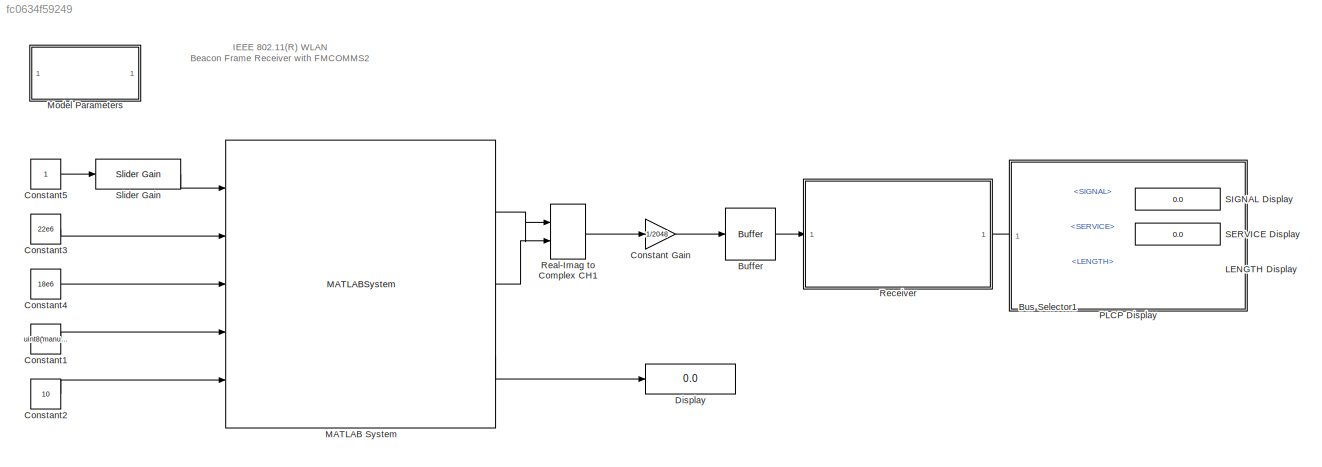
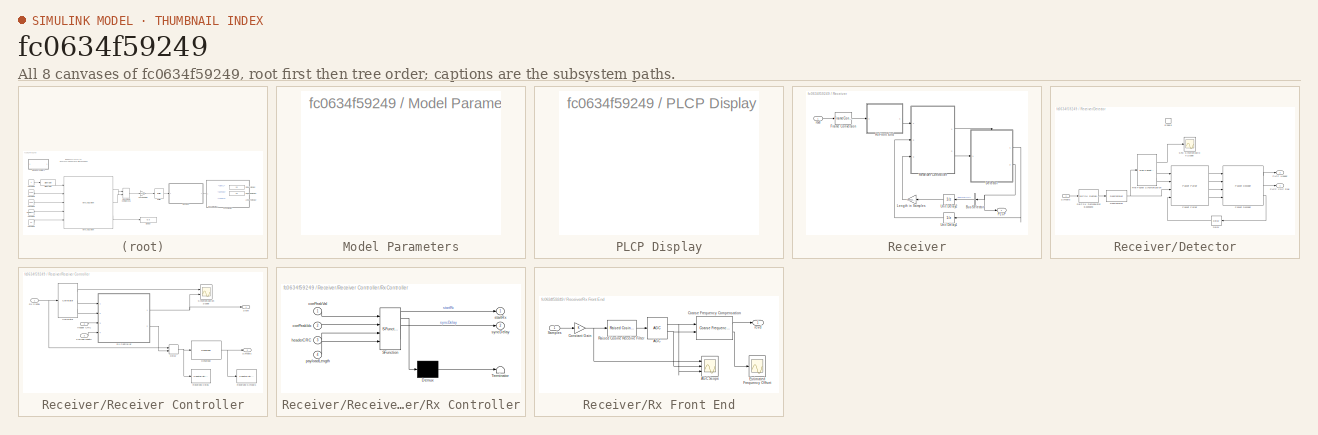
[diagram: thumbnail index - all 8 canvases of the model, root first then tree order]
MODEL slx_fc0634f59249
KIND model
CONFIG AbsTol = auto
CONFIG EnableMultiTasking = off
CONFIG FixedStep = auto
CONFIG InitFcn = load('commwlan80211BusTypes')\nwlan80211BeaconRxModelParams('init')
CONFIG MaxStep = auto
CONFIG MinStep = auto
CONFIG PostLoadFcn = wlan80211BeaconRxModelParams('init')\nwlan80211BeaconRxModelParams('scope')
CONFIG PreLoadFcn = load('commwlan80211BusTypes')\nopenMPDUGUI = true;\nsample = 860*2816;\n
CONFIG RelTol = 1e-3
CONFIG SampleTimeConstraint = Unconstrained
CONFIG Solver = FixedStepDiscrete
CONFIG SolverName = FixedStepDiscrete
CONFIG StartTime = 0.0
CONFIG StopTime = Inf
WORKSPACE source: external: MAT-File  (data not in archive)
BLOCK [Buffer] Buffer
  N = 2816
BLOCK [BusSelector] Bus Selector1
  OutputAsBus = off
  OutputSignals = SIGNAL,SERVICE,LENGTH
  Ports = [1, 3]
BLOCK [Gain] Constant Gain
  Gain = 1/2048
  OutDataTypeStr = Inherit: Inherit via internal rule
BLOCK [Constant] Constant1
  SampleTime = 1
  Value = uint8('manual')
BLOCK [Constant] Constant2
  SampleTime = 1
  Value = 10
BLOCK [Constant] Constant3
  SampleTime = 1
  Value = 22e6
BLOCK [Constant] Constant4
  SampleTime = 1
  Value = 18e6
BLOCK [Constant] Constant5
  SampleTime = 1
BLOCK [Display] Display
  Decimation = 1
  Ports = [1]
BLOCK [Display] LENGTH Display
  Decimation = 1
  Ports = [1]
BLOCK [MATLABSystem] MATLAB System
  MaskDisplay = disp('ad9361');\nport_label('input',1,'RX_LO_FREQ');\nport_label('input',2,'RX_SAMPLING_FREQ');\nport_label('input',3,'RX_RF_BANDWIDTH');\nport_label('input',4,'RX1_GAIN_MODE');\nport_label('input',5,'RX1_GAIN');\nport_label('output',1,'DATA_OUT1');\nport_label('output',2,'DATA_OUT2');\nport_label('output',3,'RX1_RSSI');
  MaskType = iio_sys_obj
  Ports = [5, 3]
  SimulateUsing = Interpreted execution
  System = iio_sys_obj
  dev_name = ad9361
  in_ch_no = 0
  in_ch_size = sample
  ip_address = 10.66.99.142
  out_ch_no = 2
  out_ch_size = sample
BLOCK [SubSystem] Model Parameters
  Ports = []
  RequestExecContextInheritance = off
  Variant = off
BLOCK [SubSystem] PLCP Display
  Ports = []
  RequestExecContextInheritance = off
  Variant = off
BLOCK [RealImagToComplex] Real-Imag to Complex CH1
  Ports = [2, 1]
  SampleTime = sample/(25e6)
BLOCK [SubSystem] Receiver
  Ports = [1, 1]
  RequestExecContextInheritance = off
  Variant = off
BLOCK [BusSelector] Receiver/Bus Selector
  OutputAsBus = off
  OutputSignals = LENGTH
  Ports = [1, 1]
BLOCK [SubSystem] Receiver/Detector
  CloseFcn = clear BeaconFrameBodyType rcvd
  Ports = [1, 2, 1]
  RequestExecContextInheritance = off
  Variant = off
BLOCK [Reference] Receiver/Detector/DBPSK Demodulator Baseband  REF=commdigbbndpm3/DBPSK
Demodulator
Baseband
  Ports = [1, 1]
  SourceBlock = commdigbbndpm3/DBPSK\nDemodulator\nBaseband
  SourceProductBaseCode = CM
  SourceProductName = Communications System Toolbox
  SourceType = DBPSK Demodulator Baseband
BLOCK [Delay] Receiver/Detector/Delay
  DelayLength = 1
  InitialCondition = 0
  InputPortMap = u0
  InputProcessing = Columns as channels (frame based)
  Ports = [1, 1]
  UserDataPersistent = on
BLOCK [Reference] Receiver/Detector/Descrambler  REF=commsequence2/Descrambler
  Ports = [1, 1]
  SourceBlock = commsequence2/Descrambler
  SourceProductBaseCode = CM
  SourceProductName = Communications System Toolbox
  SourceType = Descrambler
BLOCK [EnablePort] Receiver/Detector/Enable
  Ports = []
  PropagateVarSize = During execution
  StatesWhenEnabling = reset
BLOCK [Reference] Receiver/Detector/Fine Packet Synchronization  REF=commwlan80211BeaconLib/Fine Packet
Synchronization
  Ports = [1, 3]
  SourceBlock = commwlan80211BeaconLib/Fine Packet\nSynchronization
  SourceProductBaseCode = CM
  SourceProductName = Communications System Toolbox
  SourceType = SubSystem
BLOCK [Outport] Receiver/Detector/PLCP CRC Flag
  IconDisplay = Port number
  InitialOutput = 1
BLOCK [Outport] Receiver/Detector/PLCP Header
  IconDisplay = Port number
  Port = 2
BLOCK [Reference] Receiver/Detector/Packet Decoder  REF=commwlan80211BeaconLib/Packet Decoder
  Ports = [4, 3]
  SourceBlock = commwlan80211BeaconLib/Packet Decoder
  SourceProductBaseCode = CM
  SourceProductName = Communications System Toolbox
  SourceType = SubSystem
BLOCK [Reference] Receiver/Detector/Packet Parser  REF=commwlan80211BeaconLib/Packet Parser
  Ports = [4, 4]
  SourceBlock = commwlan80211BeaconLib/Packet Parser
  SourceProductBaseCode = CM
  SourceProductName = Communications System Toolbox
  SourceType = SubSystem
BLOCK [Scope] Receiver/Detector/SFD Synchronization Scope
  DefaultConfigurationName = spbscopes.TimeScopeBlockCfg
  NumInputPorts = 1
  Ports = [1]
  Priority = 10
  ScopeSpecificationString = spbscopes.TimeScopeBlockCfg('CurrentConfiguration', extmgr.ConfigurationSet(extmgr.Configuration('Core','General UI',true),extmgr.Configuration('Core','Source UI',true),extmgr.Configuration('Sources','WiredSimulink',true,'PointsPerSignal',50000),extmgr.Configuration('Visuals','Time Domain',true,'DisplayPropertyDefaults',struct('MinYLimReal','-17.75','MaxYLimReal','19.75','YLabelReal','Amplitude','...<+1457ch>
BLOCK [Inport] Receiver/Detector/Symbols
  IconDisplay = Port number
BLOCK [FrameConversion] Receiver/Frame Conversion
  InheritSamplingMode = off
  Ports = [1, 1]
BLOCK [Gain] Receiver/Length in Samples
  Gain = p80211.SamplesPerChip*p80211.SpreadingRate
  OutDataTypeStr = uint32
BLOCK [Outport] Receiver/PLCP
  IconDisplay = Port number
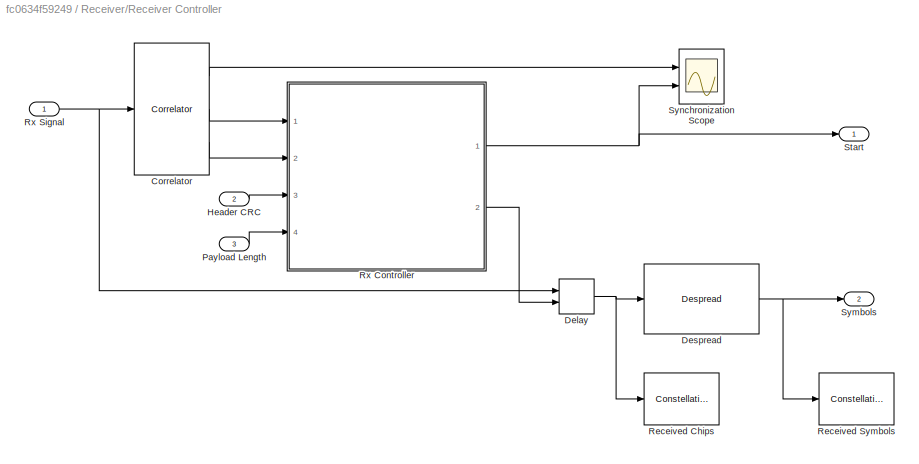
BLOCK [SubSystem] Receiver/Receiver Controller
  Ports = [3, 2]
  RequestExecContextInheritance = off
  Variant = off
BLOCK [Reference] Receiver/Receiver Controller/Correlator  REF=commwlan80211BeaconLib/Correlator
  Ports = [1, 3]
  SourceBlock = commwlan80211BeaconLib/Correlator
  SourceProductBaseCode = CM
  SourceProductName = Communications System Toolbox
  SourceType = SubSystem
BLOCK [Delay] Receiver/Receiver Controller/Delay
  DelayLengthSource = Input port
  DelayLengthUpperLimit = p80211.SamplesPerChannelFrame
  InputPortMap = u0,p1
  InputProcessing = Columns as channels (frame based)
  Ports = [2, 1]
BLOCK [Reference] Receiver/Receiver Controller/Despread  REF=commwlan80211BeaconLib/Despread
  Ports = [1, 1]
  SourceBlock = commwlan80211BeaconLib/Despread
  SourceProductBaseCode = CM
  SourceProductName = Communications System Toolbox
  SourceType = SubSystem
BLOCK [Inport] Receiver/Receiver Controller/Header CRC
  IconDisplay = Port number
  Port = 2
BLOCK [Inport] Receiver/Receiver Controller/Payload Length
  IconDisplay = Port number
  Port = 3
BLOCK [ConstellationDiagram] Receiver/Receiver Controller/Received Chips
  Ports = [1]
  Priority = 1
  ScopeSpecificationString = comm.scopes.ConstellationDiagramBlockCfg('CurrentConfiguration', extmgr.ConfigurationSet(extmgr.Configuration('Core','General UI',true,'ShowConfiguration',true,'ShowCloseAll',true,'ShowBringAllForward',true,'MessageLogAutoOpenMode','for warn/fail messages'),extmgr.Configuration('Core','Source UI',true,'PlaybackToolbar',true,'ShowPlaybackCmdMode',false),extmgr.Configuration('Sources','WiredSimulink...<+1502ch>
  Tag = ScatterPlot
BLOCK [ConstellationDiagram] Receiver/Receiver Controller/Received Symbols
  Ports = [1]
  Priority = 2
  ScopeSpecificationString = comm.scopes.ConstellationDiagramBlockCfg('CurrentConfiguration', extmgr.ConfigurationSet(extmgr.Configuration('Core','General UI',true,'ShowConfiguration',true,'ShowCloseAll',true,'ShowBringAllForward',true,'MessageLogAutoOpenMode','for warn/fail messages'),extmgr.Configuration('Core','Source UI',true,'PlaybackToolbar',true,'ShowPlaybackCmdMode',false),extmgr.Configuration('Sources','WiredSimulink...<+1507ch>
  Tag = ScatterPlot
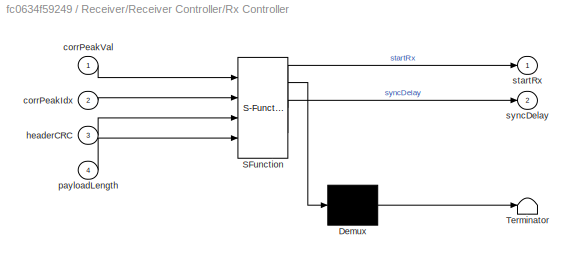
BLOCK [SubSystem] Receiver/Receiver Controller/Rx Controller
  ErrorFcn = Stateflow.Translate.translate
  PermitHierarchicalResolution = ExplicitOnly
  Ports = [4, 2]
  RequestExecContextInheritance = off
  SFBlockType = MATLAB Function
  TreatAsAtomicUnit = on
  Variant = off
BLOCK [Demux] Receiver/Receiver Controller/Rx Controller/ Demux 
  Outputs = 1
  Ports = [1, 1]
BLOCK [S-Function] Receiver/Receiver Controller/Rx Controller/ SFunction 
  EnableBusSupport = off
  FunctionName = sf_sfun
  Parameters = p80211
  PortCounts = [4 3]
  Ports = [4, 3]
  SFcnIsStateOwnerBlock = off
  SFunctionDeploymentMode = off
  Tag = Stateflow S-Function wlan80211BeaconRx 4
BLOCK [Terminator] Receiver/Receiver Controller/Rx Controller/ Terminator 
BLOCK [Inport] Receiver/Receiver Controller/Rx Controller/corrPeakIdx
  IconDisplay = Port number
  Port = 2
BLOCK [Inport] Receiver/Receiver Controller/Rx Controller/corrPeakVal
  IconDisplay = Port number
BLOCK [Inport] Receiver/Receiver Controller/Rx Controller/headerCRC
  IconDisplay = Port number
  Port = 3
BLOCK [Inport] Receiver/Receiver Controller/Rx Controller/payloadLength
  IconDisplay = Port number
  Port = 4
BLOCK [Outport] Receiver/Receiver Controller/Rx Controller/startRx
  IconDisplay = Port number
BLOCK [Outport] Receiver/Receiver Controller/Rx Controller/syncDelay
  IconDisplay = Port number
  Port = 2
BLOCK [Inport] Receiver/Receiver Controller/Rx Signal
  IconDisplay = Port number
BLOCK [Outport] Receiver/Receiver Controller/Start
  IconDisplay = Port number
BLOCK [Outport] Receiver/Receiver Controller/Symbols
  IconDisplay = Port number
  Port = 2
BLOCK [Scope] Receiver/Receiver Controller/Synchronization Scope
  DefaultConfigurationName = spbscopes.TimeScopeBlockCfg
  NumInputPorts = 2
  Ports = [2]
  Priority = 1
  ScopeSpecificationString = spbscopes.TimeScopeBlockCfg('CurrentConfiguration', extmgr.ConfigurationSet(extmgr.Configuration('Core','General UI',true),extmgr.Configuration('Core','Source UI',true),extmgr.Configuration('Sources','WiredSimulink',true,'PointsPerSignal',50000),extmgr.Configuration('Visuals','Time Domain',true,'DisplayPropertyDefaults',struct('MinYLimReal','-26.9537','MaxYLimReal','242.583','YLabelReal','Amplitud...<+1518ch>
BLOCK [SubSystem] Receiver/Rx Front End
  Ports = [1, 1]
  RequestExecContextInheritance = off
  Variant = off
BLOCK [Reference] Receiver/Rx Front End/AGC  REF=commwlan80211BeaconLib/AGC
  Ports = [1, 2]
  SourceBlock = commwlan80211BeaconLib/AGC
  SourceProductBaseCode = CM
  SourceProductName = Communications System Toolbox
  SourceType = SubSystem
BLOCK [Scope] Receiver/Rx Front End/AGC Scope
  DefaultConfigurationName = spbscopes.TimeScopeBlockCfg
  NumInputPorts = 3
  Ports = [3]
  ScopeSpecificationString = spbscopes.TimeScopeBlockCfg('CurrentConfiguration', extmgr.ConfigurationSet(extmgr.Configuration('Core','General UI',true),extmgr.Configuration('Core','Source UI',true),extmgr.Configuration('Sources','WiredSimulink',true,'PointsPerSignal',50000),extmgr.Configuration('Visuals','Time Domain',true,'DisplayPropertyDefaults',struct('MinYLimReal','-64.3276','MaxYLimReal','564.022','YLabelReal','Amplitud...<+1538ch>
BLOCK [Reference] Receiver/Rx Front End/Coarse Frequency Compensation  REF=commwlan80211BeaconLib/Coarse Frequency
Compensation
  Ports = [2, 2]
  SourceBlock = commwlan80211BeaconLib/Coarse Frequency\nCompensation
  SourceProductBaseCode = CM
  SourceProductName = Communications System Toolbox
  SourceType = Coarse Frequency Compensation
BLOCK [Gain] Receiver/Rx Front End/Constant Gain
  OutDataTypeStr = Inherit: Inherit via internal rule
BLOCK [Scope] Receiver/Rx Front End/Estimated Frequency Offset
  DefaultConfigurationName = spbscopes.TimeScopeBlockCfg
  NumInputPorts = 1
  Ports = [1]
  ScopeSpecificationString = spbscopes.TimeScopeBlockCfg('CurrentConfiguration', extmgr.ConfigurationSet(extmgr.Configuration('Core','General UI',true),extmgr.Configuration('Core','Source UI',true),extmgr.Configuration('Sources','WiredSimulink',true,'PointsPerSignal',50000),extmgr.Configuration('Visuals','Time Domain',true,'DisplayPropertyDefaults',struct('MinYLimReal','-62135.1','MaxYLimReal','62409.9','YLabelReal','Amplitud...<+1471ch>
BLOCK [Reference] Receiver/Rx Front End/Raised Cosine Receive Filter  REF=commfilt2/Raised Cosine
Receive Filter
  Ports = [1, 1]
  SourceBlock = commfilt2/Raised Cosine\nReceive Filter
  SourceProductBaseCode = CM
  SourceProductName = Communications System Toolbox
  SourceType = Raised Cosine Receive Filter
  UserDataPersistent = on
BLOCK [Inport] Receiver/Rx Front End/Samples
  IconDisplay = Port number
BLOCK [Outport] Receiver/Rx Front End/rcvd
  IconDisplay = Port number
BLOCK [UnitDelay] Receiver/Unit Delay1
  InitialCondition = 1
  InputProcessing = Elements as channels (sample based)
  SampleTime = -1
BLOCK [UnitDelay] Receiver/Unit Delay2
  InitialCondition = 1
  InputProcessing = Elements as channels (sample based)
  SampleTime = -1
BLOCK [Inport] Receiver/rcvd
  IconDisplay = Port number
BLOCK [Display] SERVICE Display
  Decimation = 1
  Format = hex (Stored Integer)
  Ports = [1]
BLOCK [Display] SIGNAL Display
  Decimation = 1
  Format = hex (Stored Integer)
  Ports = [1]
BLOCK [Reference] Slider Gain  REF=simulink/Math
Operations/Slider
Gain
  Ports = [1, 1]
  SourceBlock = simulink/Math\nOperations/Slider\nGain
  SourceProductBaseCode = SL
  SourceProductName = Simulink
  SourceType = Slider Gain
ANNOTATION (root): IEEE 802.11(R) WLAN Beacon Frame Receiver with FMCOMMS2
LINE Buffer:1 -> Receiver:1
LINE Bus Selector1:1 -> SIGNAL Display:1
LINE Bus Selector1:2 -> SERVICE Display:1
LINE Bus Selector1:3 -> LENGTH Display:1
LINE Constant Gain:1 -> Buffer:1
LINE Constant1:1 -> MATLAB System:4
LINE Constant2:1 -> MATLAB System:5
LINE Constant3:1 -> MATLAB System:2
LINE Constant4:1 -> MATLAB System:3
LINE Constant5:1 -> Slider Gain:1
LINE MATLAB System:1 -> Real-Imag to Complex CH1:1
LINE MATLAB System:2 -> Real-Imag to Complex CH1:2
LINE MATLAB System:3 -> Display:1
LINE Real-Imag to Complex CH1:1 -> Constant Gain:1
LINE Receiver/Bus Selector:1 -> Receiver/Unit Delay2:1
LINE Receiver/Detector/DBPSK Demodulator Baseband:1 -> Receiver/Detector/Descrambler:1
LINE Receiver/Detector/Delay:1 -> Receiver/Detector/Packet Parser:4
NET Receiver/Detector/Descrambler:1 -> Receiver/Detector/Fine Packet Synchronization:1, Receiver/Detector/Packet Parser:3
LINE Receiver/Detector/Fine Packet Synchronization:1 -> Receiver/Detector/SFD Synchronization Scope:1
LINE Receiver/Detector/Fine Packet Synchronization:2 -> Receiver/Detector/Packet Parser:1
LINE Receiver/Detector/Fine Packet Synchronization:3 -> Receiver/Detector/Packet Parser:2
LINE Receiver/Detector/Packet Decoder:1 -> Receiver/Detector/PLCP Header:1
LINE Receiver/Detector/Packet Decoder:2 -> Receiver/Detector/PLCP CRC Flag:1
LINE Receiver/Detector/Packet Decoder:3 -> Receiver/Detector/Delay:1
LINE Receiver/Detector/Packet Parser:1 -> Receiver/Detector/Packet Decoder:1
LINE Receiver/Detector/Packet Parser:2 -> Receiver/Detector/Packet Decoder:2
LINE Receiver/Detector/Packet Parser:3 -> Receiver/Detector/Packet Decoder:3
LINE Receiver/Detector/Packet Parser:4 -> Receiver/Detector/Packet Decoder:4
LINE Receiver/Detector/Symbols:1 -> Receiver/Detector/DBPSK Demodulator Baseband:1
LINE Receiver/Detector:1 -> Receiver/Unit Delay1:1
NET Receiver/Detector:2 -> Receiver/Bus Selector:1, Receiver/PLCP:1
LINE Receiver/Frame Conversion:1 -> Receiver/Rx Front End:1
LINE Receiver/Length in Samples:1 -> Receiver/Receiver Controller:3
LINE Receiver/Receiver Controller/Correlator:1 -> Receiver/Receiver Controller/Synchronization Scope:1
LINE Receiver/Receiver Controller/Correlator:2 -> Receiver/Receiver Controller/Rx Controller:1
LINE Receiver/Receiver Controller/Correlator:3 -> Receiver/Receiver Controller/Rx Controller:2
NET Receiver/Receiver Controller/Delay:1 -> Receiver/Receiver Controller/Despread:1, Receiver/Receiver Controller/Received Chips:1
NET Receiver/Receiver Controller/Despread:1 -> Receiver/Receiver Controller/Received Symbols:1, Receiver/Receiver Controller/Symbols:1
LINE Receiver/Receiver Controller/Header CRC:1 -> Receiver/Receiver Controller/Rx Controller:3
LINE Receiver/Receiver Controller/Payload Length:1 -> Receiver/Receiver Controller/Rx Controller:4
NET Receiver/Receiver Controller/Rx Controller:1 -> Receiver/Receiver Controller/Start:1, Receiver/Receiver Controller/Synchronization Scope:2
LINE Receiver/Receiver Controller/Rx Controller:2 -> Receiver/Receiver Controller/Delay:2
NET Receiver/Receiver Controller/Rx Signal:1 -> Receiver/Receiver Controller/Correlator:1, Receiver/Receiver Controller/Delay:1
LINE Receiver/Receiver Controller:1 -> Receiver/Detector:enable
LINE Receiver/Receiver Controller:2 -> Receiver/Detector:1
NET Receiver/Rx Front End/AGC:1 -> Receiver/Rx Front End/AGC Scope:3, Receiver/Rx Front End/Coarse Frequency Compensation:1
NET Receiver/Rx Front End/AGC:2 -> Receiver/Rx Front End/AGC Scope:2, Receiver/Rx Front End/Coarse Frequency Compensation:2
LINE Receiver/Rx Front End/Coarse Frequency Compensation:1 -> Receiver/Rx Front End/rcvd:1
LINE Receiver/Rx Front End/Coarse Frequency Compensation:2 -> Receiver/Rx Front End/Estimated Frequency Offset:1
NET Receiver/Rx Front End/Constant Gain:1 -> Receiver/Rx Front End/AGC Scope:1, Receiver/Rx Front End/Raised Cosine Receive Filter:1
LINE Receiver/Rx Front End/Raised Cosine Receive Filter:1 -> Receiver/Rx Front End/AGC:1
LINE Receiver/Rx Front End/Samples:1 -> Receiver/Rx Front End/Constant Gain:1
LINE Receiver/Rx Front End:1 -> Receiver/Receiver Controller:1
LINE Receiver/Unit Delay1:1 -> Receiver/Receiver Controller:2
LINE Receiver/Unit Delay2:1 -> Receiver/Length in Samples:1
LINE Receiver/rcvd:1 -> Receiver/Frame Conversion:1
LINE Receiver:1 -> Bus Selector1:1
LINE Slider Gain:1 -> MATLAB System:1
note: NET lines group one-source signal fan-out (src -> all destinations, sorted); 1:1 wires keep LINE
CHART Receiver/Receiver Controller/Rx Controller states=1 transitions=1
  STATE_LABEL 'eML_blk_kernel()'
  STATE_LABEL 'SCRIPT:\nfunction [startRx, syncDelay] = ...\n  rxCtrl(corrPeakVal, corrPeakIdx, headerCRC, payloadLength, p80211)\n%#codegen\n\npersistent rxOn controllerState payloadCount lastSyncDelay corrPeakValOld\n\n% State Enums\nSearchPLCP = 0;\nGetPLCP    = 2;\nGetPayload = 4;\n\nif isempty(rxOn)\n  % Initialize receiver controller\n  rxOn = false;\n  controllerState = SearchPLCP;\n  payloadCount = 0;\n  lastSyncDelay = ...<+1673ch>'
